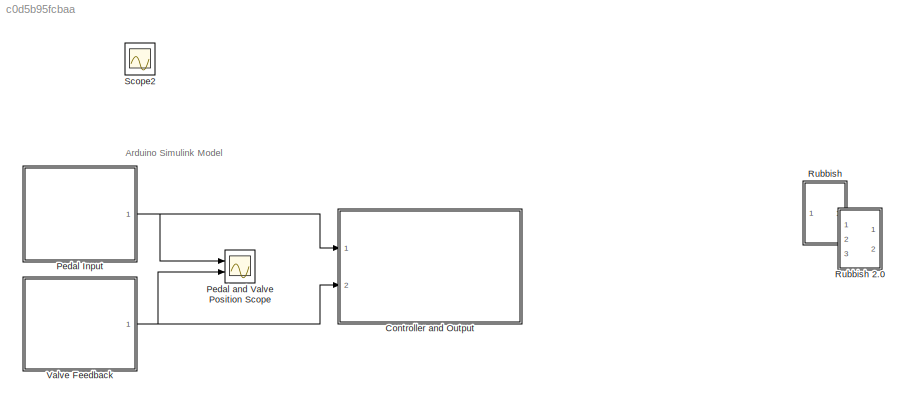
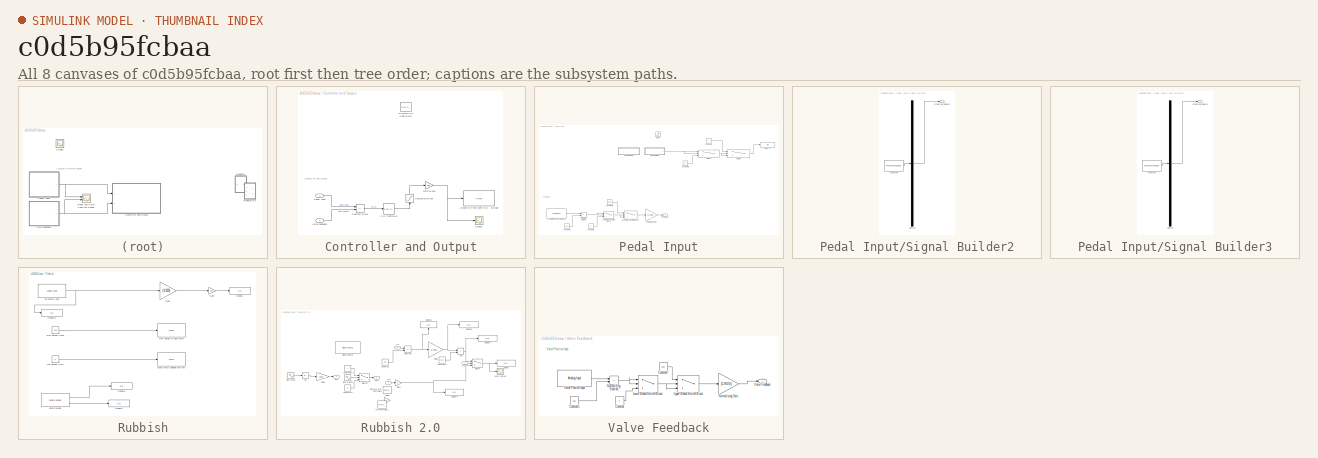
[diagram: thumbnail index - all 8 canvases of the model, root first then tree order]
MODEL slx_c0d5b95fcbaa
KIND model
CONFIG AbsTol = auto
CONFIG EnableMultiTasking = on
CONFIG FixedStep = auto
CONFIG MaxStep = auto
CONFIG MinStep = auto
CONFIG RelTol = 1e-3
CONFIG SampleTimeConstraint = Unconstrained
CONFIG SolverName = FixedStepAuto
CONFIG StartTime = 0.0
CONFIG StopTime = 30
BLOCK [SubSystem] Controller and Output
  Ports = [2]
  RequestExecContextInheritance = off
BLOCK [Reference] Controller and Output/Amount of PWM sent to H - Bridge  REF=arduinolib/PWM
  Ports = [1]
  SourceBlock = arduinolib/PWM
  SourceProductBaseCode = ARDUINO
  SourceType = Arduino PWM
BLOCK [Reference] Controller and Output/Discrete PID Controller2  REF=slpidlib/PID Controller
  Commented = on
  Ports = [1, 1]
  SourceBlock = slpidlib/PID Controller
  SourceProductBaseCode = SL
  SourceType = PID 1dof
BLOCK [Gain] Controller and Output/Gain Block
  Gain = 255
BLOCK [Reference] Controller and Output/PID Controller   REF=slpidlib/PID Controller
  Ports = [1, 1]
  SourceBlock = slpidlib/PID Controller
  SourceProductBaseCode = SL
  SourceType = PID 1dof
BLOCK [Inport] Controller and Output/Pedal Input
BLOCK [Saturate] Controller and Output/Saturation Block
  LowerLimit = 0
  NameLocation = right
  UpperLimit = 1
BLOCK [Scope] Controller and Output/Scope1
  Floating = off
  NumInputPorts = 1
  Ports = [1]
  ScopeSpecificationString = Simulink.scopes.TimeScopeBlockCfg('CurrentConfiguration', extmgr.ConfigurationSet(extmgr.Configuration('Core','General UI',true),extmgr.Configuration('Core','Source UI',true),extmgr.Configuration('Sources','WiredSimulink',true,'DataLoggingVariableName','ScopeData2'),extmgr.Configuration('Visuals','Time Domain',true,'SerializedDisplays',{struct('MinYLimReal','-31.875','MaxYLimReal','286.875','YLabe...<+1461ch>
BLOCK [Sum] Controller and Output/Subtract Block
  IconShape = rectangular
  Inputs = +-
  Ports = [2, 1]
BLOCK [Inport] Controller and Output/Valve Feedback
  Port = 2
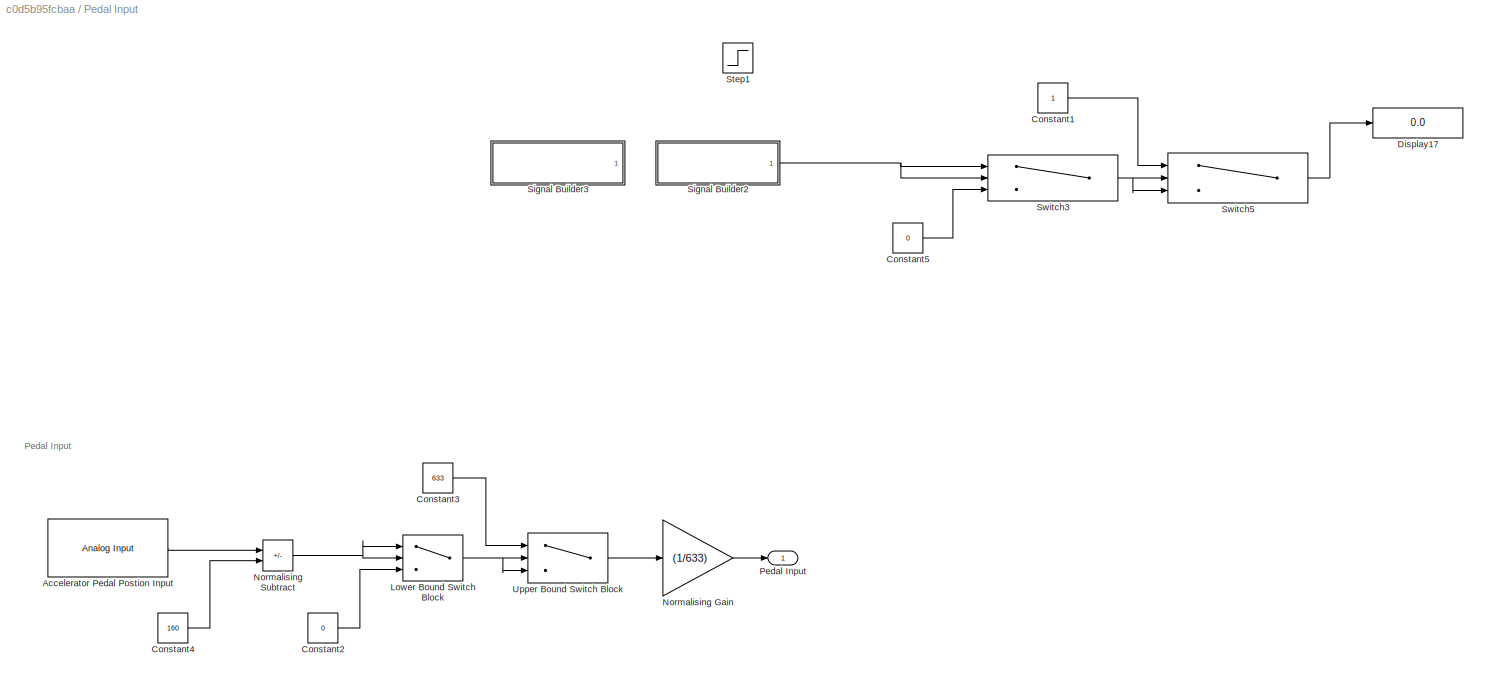
BLOCK [SubSystem] Pedal Input
  Ports = [0, 1]
  RequestExecContextInheritance = off
BLOCK [Reference] Pedal Input/Accelerator Pedal Postion Input  REF=arduinolib/Analog Input
  Ports = [0, 1]
  SourceBlock = arduinolib/Analog Input
  SourceProductBaseCode = ARDUINO
  SourceType = Arduino Analog Input
BLOCK [Constant] Pedal Input/Constant1
  Commented = on
BLOCK [Constant] Pedal Input/Constant2
  Value = 0
BLOCK [Constant] Pedal Input/Constant3
  Value = 633
BLOCK [Constant] Pedal Input/Constant4
  Value = 160
BLOCK [Constant] Pedal Input/Constant5
  Commented = on
  Value = 0
BLOCK [Display] Pedal Input/Display17
  Commented = on
  Decimation = 1
  Ports = [1]
BLOCK [Switch] Pedal Input/Lower Bound Switch Block
  InputSameDT = off
  SaturateOnIntegerOverflow = off
  Threshold = 30
BLOCK [Gain] Pedal Input/Normalising Gain
  Gain = (1/633)
BLOCK [Sum] Pedal Input/Normalising Subtract
  IconShape = rectangular
  Inputs = +-
  Ports = [2, 1]
BLOCK [Outport] Pedal Input/Pedal Input
BLOCK [SubSystem] Pedal Input/Signal Builder2
  ClipboardFcn = sigbuilder_block('clipboard');
  CloseFcn = sigbuilder_block('close');
  Commented = on
  ContinueFcn = sigbuilder_block('continue');
  CopyFcn = sigbuilder_block('copy');
  DeleteFcn = sigbuilder_block('delete');
  LoadFcn = sigbuilder_block('load');
  MaskHideContents = on
  ModelCloseFcn = sigbuilder_block('modelClose');
  NameChangeFcn = sigbuilder_block('namechange');
  OpenFcn = sigbuilder_block('open',[226.8 88.2 550.8 400.2 ]);
  PauseFcn = sigbuilder_block('pause');
  Ports = [0, 1]
  PreSaveFcn = sigbuilder_block('preSave');
  RequestExecContextInheritance = off
  StartFcn = sigbuilder_block('start');
  StopFcn = sigbuilder_block('stop');
  Tag = STV Subsys
BLOCK [Demux] Pedal Input/Signal Builder2/Demux
  DisplayOption = none
  Outputs = 1
  Ports = [1, 1]
  Tag = STV Demux
BLOCK [FromWorkspace] Pedal Input/Signal Builder2/FromWs
  Tag = STV FromWs
  VariableName = tuvar
BLOCK [Outport] Pedal Input/Signal Builder2/Imported_Signal 1
  Tag = STV Outport
BLOCK [SubSystem] Pedal Input/Signal Builder3
  ClipboardFcn = sigbuilder_block('clipboard');
  CloseFcn = sigbuilder_block('close');
  Commented = on
  ContinueFcn = sigbuilder_block('continue');
  CopyFcn = sigbuilder_block('copy');
  DeleteFcn = sigbuilder_block('delete');
  LoadFcn = sigbuilder_block('load');
  MaskHideContents = on
  ModelCloseFcn = sigbuilder_block('modelClose');
  NameChangeFcn = sigbuilder_block('namechange');
  OpenFcn = sigbuilder_block('open',[5.4 30 1141.2 522.6 ]);
  PauseFcn = sigbuilder_block('pause');
  Ports = [0, 1]
  PreSaveFcn = sigbuilder_block('preSave');
  RequestExecContextInheritance = off
  StartFcn = sigbuilder_block('start');
  StopFcn = sigbuilder_block('stop');
  Tag = STV Subsys
BLOCK [Demux] Pedal Input/Signal Builder3/Demux
  DisplayOption = none
  Outputs = 1
  Ports = [1, 1]
  Tag = STV Demux
BLOCK [FromWorkspace] Pedal Input/Signal Builder3/FromWs
  Tag = STV FromWs
  VariableName = tuvar
BLOCK [Outport] Pedal Input/Signal Builder3/Imported_Signal 1
  Tag = STV Outport
BLOCK [Step] Pedal Input/Step1
  Commented = on
  SampleTime = 0
  Time = 5
BLOCK [Switch] Pedal Input/Switch3
  Commented = on
  InputSameDT = off
  SaturateOnIntegerOverflow = off
  Threshold = 0.047393365
BLOCK [Switch] Pedal Input/Switch5
  Commented = on
  InputSameDT = off
  SaturateOnIntegerOverflow = off
  Threshold = 0.963665087
BLOCK [Switch] Pedal Input/Upper Bound Switch Block
  InputSameDT = off
  SaturateOnIntegerOverflow = off
  Threshold = 610
BLOCK [Scope] Pedal and Valve Position Scope
  Floating = off
  NumInputPorts = 2
  Ports = [2]
  ScopeSpecificationString = Simulink.scopes.TimeScopeBlockCfg('CurrentConfiguration', extmgr.ConfigurationSet(extmgr.Configuration('Core','General UI',true),extmgr.Configuration('Core','Source UI',true),extmgr.Configuration('Sources','WiredSimulink',true,'DataLoggingVariableName','ScopeData1','DataLogging',true),extmgr.Configuration('Visuals','Time Domain',true,'SerializedDisplays',{struct('MinYLimReal','-0.125','MaxYLimReal...<+1469ch>
BLOCK [SubSystem] Rubbish
  Ports = []
  RequestExecContextInheritance = off
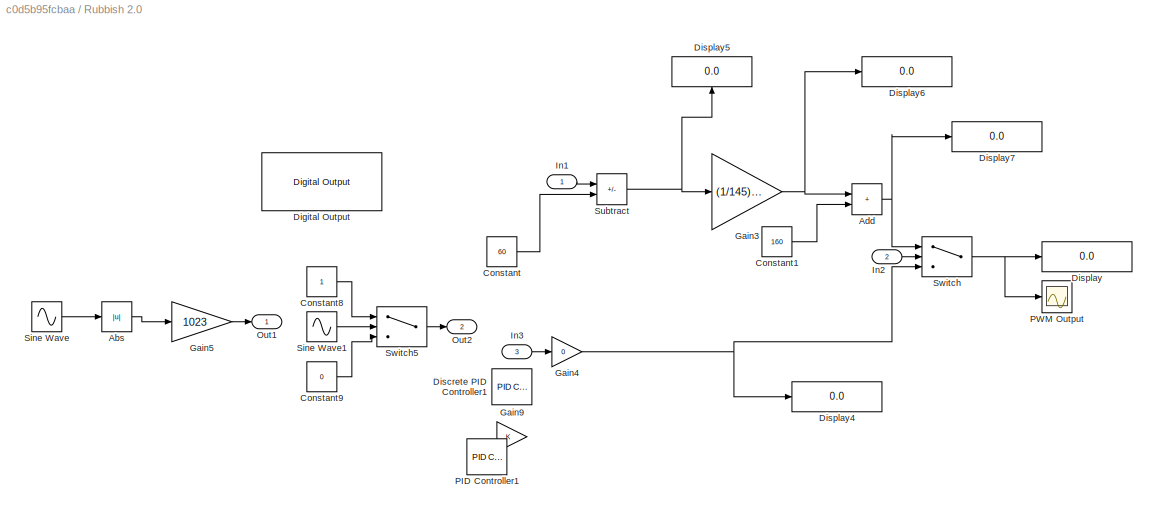
BLOCK [SubSystem] Rubbish 2.0
  Commented = on
  Ports = [3, 2]
  RequestExecContextInheritance = off
BLOCK [Abs] Rubbish 2.0/Abs
  Commented = on
  SaturateOnIntegerOverflow = off
BLOCK [Sum] Rubbish 2.0/Add
  Commented = on
  IconShape = rectangular
  Ports = [2, 1]
BLOCK [Constant] Rubbish 2.0/Constant
  Commented = on
  Value = 60
BLOCK [Constant] Rubbish 2.0/Constant1
  Commented = on
  Value = 160
BLOCK [Constant] Rubbish 2.0/Constant8
  Commented = on
BLOCK [Constant] Rubbish 2.0/Constant9
  Commented = on
  Value = 0
BLOCK [Reference] Rubbish 2.0/Digital Output  REF=arduinolib/Digital Output
  Commented = on
  Ports = [1]
  SourceBlock = arduinolib/Digital Output
  SourceProductBaseCode = ARDUINO
  SourceType = Arduino Digital Output
BLOCK [Reference] Rubbish 2.0/Discrete PID Controller1  REF=slpidlib/PID Controller
  Commented = on
  Ports = [1, 1]
  SourceBlock = slpidlib/PID Controller
  SourceProductBaseCode = SL
  SourceType = PID 1dof
BLOCK [Display] Rubbish 2.0/Display
  Commented = on
  Decimation = 1
  Ports = [1]
BLOCK [Display] Rubbish 2.0/Display4
  Commented = on
  Decimation = 1
  Ports = [1]
BLOCK [Display] Rubbish 2.0/Display5
  Commented = on
  Decimation = 1
  NameLocation = right
  Ports = [1]
BLOCK [Display] Rubbish 2.0/Display6
  Commented = on
  Decimation = 1
  Ports = [1]
BLOCK [Display] Rubbish 2.0/Display7
  Commented = on
  Decimation = 1
  Ports = [1]
BLOCK [Gain] Rubbish 2.0/Gain3
  Commented = on
  Gain = (1/145)*40
BLOCK [Gain] Rubbish 2.0/Gain4
  Commented = on
  Gain = 0
BLOCK [Gain] Rubbish 2.0/Gain5
  Commented = on
  Gain = 1023
BLOCK [Gain] Rubbish 2.0/Gain9
  Commented = on
BLOCK [Inport] Rubbish 2.0/In1
BLOCK [Inport] Rubbish 2.0/In2
  Port = 2
BLOCK [Inport] Rubbish 2.0/In3
  Port = 3
BLOCK [Outport] Rubbish 2.0/Out1
BLOCK [Outport] Rubbish 2.0/Out2
  Port = 2
BLOCK [Reference] Rubbish 2.0/PID Controller1  REF=slpidlib/PID Controller
  Commented = on
  Ports = [1, 1]
  SourceBlock = slpidlib/PID Controller
  SourceProductBaseCode = SL
  SourceType = PID 1dof
BLOCK [Scope] Rubbish 2.0/PWM Output
  Commented = on
  Floating = off
  NumInputPorts = 1
  Ports = [1]
  ScopeSpecificationString = Simulink.scopes.TimeScopeBlockCfg('CurrentConfiguration', extmgr.ConfigurationSet(extmgr.Configuration('Core','General UI',true),extmgr.Configuration('Core','Source UI',true),extmgr.Configuration('Sources','WiredSimulink',true),extmgr.Configuration('Visuals','Time Domain',true,'SerializedDisplays',{struct('MinYLimReal','-26.72414','MaxYLimReal','240.51724','YLabelReal','','MinYLimMag','0.00000','M...<+1415ch>
BLOCK [Sin] Rubbish 2.0/Sine Wave
  Commented = on
  Frequency = 0.62
  Ports = [0, 1]
  SampleTime = 0
BLOCK [Sin] Rubbish 2.0/Sine Wave1
  Commented = on
  Frequency = pi/5
  Ports = [0, 1]
  SampleTime = 0
BLOCK [Sum] Rubbish 2.0/Subtract
  Commented = on
  IconShape = rectangular
  Inputs = +-
  Ports = [2, 1]
BLOCK [Switch] Rubbish 2.0/Switch
  Commented = on
  Criteria = u2 > Threshold
  InputSameDT = off
  SaturateOnIntegerOverflow = off
  Threshold = 59
BLOCK [Switch] Rubbish 2.0/Switch5
  Commented = on
  InputSameDT = off
  SaturateOnIntegerOverflow = off
BLOCK [Display] Rubbish/Display1
  Decimation = 1
  Ports = [1]
BLOCK [Display] Rubbish/Display13
  Decimation = 1
  Ports = [1]
BLOCK [Display] Rubbish/Display8
  Decimation = 1
  Ports = [1]
BLOCK [Display] Rubbish/Display9
  Decimation = 1
  Ports = [1]
BLOCK [Gain] Rubbish/Gain1
  Gain = (1/1023)
BLOCK [Gain] Rubbish/Gain7
  Gain = 255
BLOCK [Constant] Rubbish/Max Voltage (High)
  Value = 255
BLOCK [Reference] Rubbish/Max Voltage to Spin Motor  REF=arduinolib/PWM
  Ports = [1]
  SourceBlock = arduinolib/PWM
  SourceProductBaseCode = ARDUINO
  SourceType = Arduino PWM
BLOCK [Constant] Rubbish/Min Voltage (Low)
  Value = 0
BLOCK [Reference] Rubbish/Serial Receive  REF=arduinolib/Serial Receive
  Ports = [0, 2]
  SourceBlock = arduinolib/Serial Receive
  SourceProductBaseCode = ARDUINO
  SourceType = Arduino Serial Receive
BLOCK [Reference] Rubbish/Stops Motor Spinning This Way  REF=arduinolib/PWM
  Ports = [1]
  SourceBlock = arduinolib/PWM
  SourceProductBaseCode = ARDUINO
  SourceType = Arduino PWM
BLOCK [Reference] Rubbish/TB Postion Input  REF=arduinolib/Analog Input
  Ports = [0, 1]
  SourceBlock = arduinolib/Analog Input
  SourceProductBaseCode = ARDUINO
  SourceType = Arduino Analog Input
BLOCK [Scope] Scope2
  Floating = off
  IOType = viewer
  NumInputPorts = 1
  Ports = []
  ScopeSpecificationString = Simulink.scopes.TimeScopeBlockCfg('CurrentConfiguration', extmgr.ConfigurationSet(extmgr.Configuration('Core','General UI',true),extmgr.Configuration('Core','Source UI',true),extmgr.Configuration('Sources','WiredSimulink',true,'DataLoggingVariableName','ScopeData1'),extmgr.Configuration('Visuals','Time Domain',true,'SerializedDisplays',{struct('MinYLimReal','-0.125','MaxYLimReal','1.125','YLabelRe...<+1505ch>
BLOCK [SubSystem] Valve Feedback
  Ports = [0, 1]
  RequestExecContextInheritance = off
BLOCK [Constant] Valve Feedback/Constant
  Value = 0
BLOCK [Constant] Valve Feedback/Constant1
  Value = 160
BLOCK [Constant] Valve Feedback/Constant7
  Value = 800
BLOCK [Switch] Valve Feedback/Lower Bound Switch Block
  InputSameDT = off
  SaturateOnIntegerOverflow = off
  Threshold = 100
BLOCK [Gain] Valve Feedback/Normalising Gain
  Gain = (1/800)
BLOCK [Sum] Valve Feedback/Normalising Subtract 
  IconShape = rectangular
  Inputs = +-
  Ports = [2, 1]
BLOCK [Switch] Valve Feedback/Upper Bound Switch Block
  InputSameDT = off
  SaturateOnIntegerOverflow = off
  Threshold = 650
BLOCK [Outport] Valve Feedback/Valve Feedback
BLOCK [Reference] Valve Feedback/Valve Postion Input  REF=arduinolib/Analog Input
  Ports = [0, 1]
  SourceBlock = arduinolib/Analog Input
  SourceProductBaseCode = ARDUINO
  SourceType = Arduino Analog Input
ANNOTATION (root): Arduino Simulink Model
ANNOTATION Controller and Output: Controller and Output
ANNOTATION Pedal Input: Pedal Input
ANNOTATION Valve Feedback: Valve Position Input
NET Controller and Output/Gain Block:1 -> Controller and Output/Amount of PWM sent to H - Bridge:1, Controller and Output/Scope1:1
LINE Controller and Output/PID Controller :1 -> Controller and Output/Saturation Block:1
LINE Controller and Output/Pedal Input:1 -> Controller and Output/Subtract Block:1
LINE Controller and Output/Saturation Block:1 -> Controller and Output/Gain Block:1
LINE Controller and Output/Subtract Block:1 -> Controller and Output/PID Controller :1
LINE Controller and Output/Valve Feedback:1 -> Controller and Output/Subtract Block:2
LINE Pedal Input/Accelerator Pedal Postion Input:1 -> Pedal Input/Normalising Subtract:1
LINE Pedal Input/Constant1:1 -> Pedal Input/Switch5:1
LINE Pedal Input/Constant2:1 -> Pedal Input/Lower Bound Switch Block:3
LINE Pedal Input/Constant3:1 -> Pedal Input/Upper Bound Switch Block:1
LINE Pedal Input/Constant4:1 -> Pedal Input/Normalising Subtract:2
LINE Pedal Input/Constant5:1 -> Pedal Input/Switch3:3
NET Pedal Input/Lower Bound Switch Block:1 -> Pedal Input/Upper Bound Switch Block:2, Pedal Input/Upper Bound Switch Block:3
LINE Pedal Input/Normalising Gain:1 -> Pedal Input/Pedal Input:1
NET Pedal Input/Normalising Subtract:1 -> Pedal Input/Lower Bound Switch Block:1, Pedal Input/Lower Bound Switch Block:2
NET Pedal Input/Signal Builder2:1 -> Pedal Input/Switch3:1, Pedal Input/Switch3:2
NET Pedal Input/Switch3:1 -> Pedal Input/Switch5:2, Pedal Input/Switch5:3
LINE Pedal Input/Switch5:1 -> Pedal Input/Display17:1
LINE Pedal Input/Upper Bound Switch Block:1 -> Pedal Input/Normalising Gain:1
NET Pedal Input:1 -> Controller and Output:1, Pedal and Valve Position Scope:1
LINE Rubbish 2.0/Abs:1 -> Rubbish 2.0/Gain5:1
NET Rubbish 2.0/Add:1 -> Rubbish 2.0/Display7:1, Rubbish 2.0/Switch:1
LINE Rubbish 2.0/Constant1:1 -> Rubbish 2.0/Add:2
LINE Rubbish 2.0/Constant8:1 -> Rubbish 2.0/Switch5:1
LINE Rubbish 2.0/Constant9:1 -> Rubbish 2.0/Switch5:3
LINE Rubbish 2.0/Constant:1 -> Rubbish 2.0/Subtract:2
NET Rubbish 2.0/Gain3:1 -> Rubbish 2.0/Add:1, Rubbish 2.0/Display6:1
NET Rubbish 2.0/Gain4:1 -> Rubbish 2.0/Display4:1, Rubbish 2.0/Switch:3
LINE Rubbish 2.0/Gain5:1 -> Rubbish 2.0/Out1:1
LINE Rubbish 2.0/In1:1 -> Rubbish 2.0/Subtract:1
LINE Rubbish 2.0/In2:1 -> Rubbish 2.0/Switch:2
LINE Rubbish 2.0/In3:1 -> Rubbish 2.0/Gain4:1
LINE Rubbish 2.0/Sine Wave1:1 -> Rubbish 2.0/Switch5:2
LINE Rubbish 2.0/Sine Wave:1 -> Rubbish 2.0/Abs:1
NET Rubbish 2.0/Subtract:1 -> Rubbish 2.0/Display5:1, Rubbish 2.0/Gain3:1
LINE Rubbish 2.0/Switch5:1 -> Rubbish 2.0/Out2:1
NET Rubbish 2.0/Switch:1 -> Rubbish 2.0/Display:1, Rubbish 2.0/PWM Output:1
LINE Rubbish/Gain1:1 -> Rubbish/Gain7:1
LINE Rubbish/Gain7:1 -> Rubbish/Display1:1
LINE Rubbish/Max Voltage (High):1 -> Rubbish/Max Voltage to Spin Motor:1
LINE Rubbish/Min Voltage (Low):1 -> Rubbish/Stops Motor Spinning This Way:1
LINE Rubbish/Serial Receive:1 -> Rubbish/Display8:1
LINE Rubbish/Serial Receive:2 -> Rubbish/Display9:1
NET Rubbish/TB Postion Input:1 -> Rubbish/Display13:1, Rubbish/Gain1:1
LINE Valve Feedback/Constant1:1 -> Valve Feedback/Normalising Subtract :2
LINE Valve Feedback/Constant7:1 -> Valve Feedback/Upper Bound Switch Block:1
LINE Valve Feedback/Constant:1 -> Valve Feedback/Lower Bound Switch Block:3
NET Valve Feedback/Lower Bound Switch Block:1 -> Valve Feedback/Upper Bound Switch Block:2, Valve Feedback/Upper Bound Switch Block:3
LINE Valve Feedback/Normalising Gain:1 -> Valve Feedback/Valve Feedback:1
NET Valve Feedback/Normalising Subtract :1 -> Valve Feedback/Lower Bound Switch Block:1, Valve Feedback/Lower Bound Switch Block:2
LINE Valve Feedback/Upper Bound Switch Block:1 -> Valve Feedback/Normalising Gain:1
LINE Valve Feedback/Valve Postion Input:1 -> Valve Feedback/Normalising Subtract :1
NET Valve Feedback:1 -> Controller and Output:2, Pedal and Valve Position Scope:2
note: NET lines group one-source signal fan-out (src -> all destinations, sorted); 1:1 wires keep LINE
